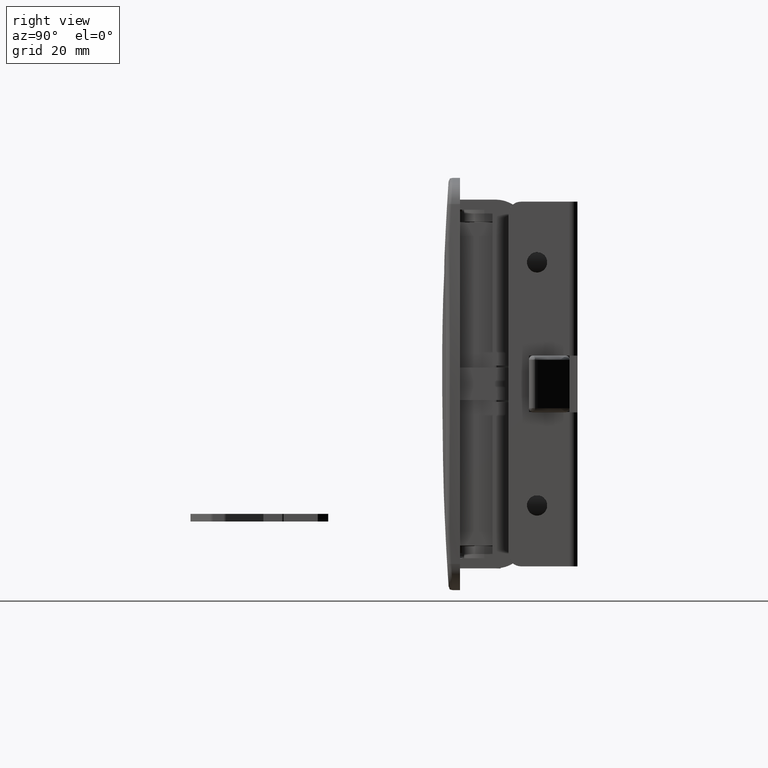
[diagram: clean part render]
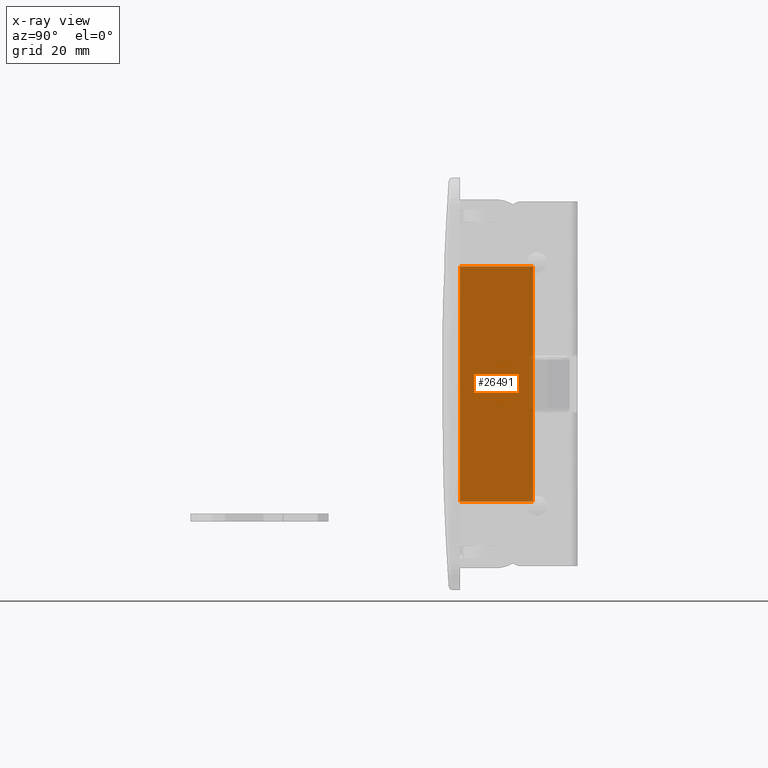
[diagram: x-ray — body ghosted, one internal face saturated and labeled with its STEP entity id]
A machine part, right view, then the same camera in x-ray: the body is ghosted and one INTERNAL B-rep face — a face not visible from any outside direction — is saturated and labeled: STEP entity #26491.
In plain terms, the highlighted face is a freeform B-spline surface patch.
Its self-contained STEP definition (entity closure, byte-faithful):
#24571=CARTESIAN_POINT('',(35.000999999999998,-11.0,-29.0));
#24572=VERTEX_POINT('',#24571);
#24627=CARTESIAN_POINT('',(35.000999999999998,-29.0,-29.0));
#24628=VERTEX_POINT('',#24627);
#24666=CARTESIAN_POINT('',(35.000999999999998,-29.0,-29.0));
#24667=CARTESIAN_POINT('',(35.000999999999998,-11.0,-29.0));
#24668=QUASI_UNIFORM_CURVE('',1,(#24666,#24667),.UNSPECIFIED.,.F.,.U.);
#24669=EDGE_CURVE('',#24628,#24572,#24668,.T.);
#24776=CARTESIAN_POINT('',(35.000999999999998,-11.0,29.0));
#24777=VERTEX_POINT('',#24776);
#24830=CARTESIAN_POINT('',(35.000999999999998,-29.0,29.0));
#24831=VERTEX_POINT('',#24830);
#24863=CARTESIAN_POINT('',(35.000999999999998,-11.0,29.0));
#24864=CARTESIAN_POINT('',(35.000999999999998,-29.0,29.0));
#24865=QUASI_UNIFORM_CURVE('',1,(#24863,#24864),.UNSPECIFIED.,.F.,.U.);
#24866=EDGE_CURVE('',#24777,#24831,#24865,.T.);
#26467=CARTESIAN_POINT('',(35.000999999999998,-11.0,-29.0));
#26468=CARTESIAN_POINT('',(35.000999999999998,-11.0,29.0));
#26469=QUASI_UNIFORM_CURVE('',1,(#26467,#26468),.UNSPECIFIED.,.F.,.U.);
#26470=EDGE_CURVE('',#24572,#24777,#26469,.T.);
#26476=CARTESIAN_POINT('',(35.000999999999998,-29.899099965112509,31.897099887584751));
#26477=CARTESIAN_POINT('',(35.000999999999998,-29.899099965112509,-31.897101443265981));
#26478=CARTESIAN_POINT('',(35.000999999999998,-10.100899552089871,31.897099887584751));
#26479=CARTESIAN_POINT('',(35.000999999999998,-10.100899552089871,-31.897101443265981));
#26480=B_SPLINE_SURFACE_WITH_KNOTS('',1,1,((#26476,#26478),(#26477,#26479)),.UNSPECIFIED.,.F.,.F.,.U.,(2,2),(2,2),(0.0,63.794201330850733),(0.0,19.798200413022641),.UNSPECIFIED.);
#26481=ORIENTED_EDGE('',*,*,#26470,.T.);
#26482=ORIENTED_EDGE('',*,*,#24866,.T.);
#26483=CARTESIAN_POINT('',(35.000999999999998,-29.0,-29.0));
#26484=CARTESIAN_POINT('',(35.000999999999998,-29.0,29.0));
#26485=QUASI_UNIFORM_CURVE('',1,(#26483,#26484),.UNSPECIFIED.,.F.,.U.);
#26486=EDGE_CURVE('',#24628,#24831,#26485,.T.);
#26487=ORIENTED_EDGE('',*,*,#26486,.F.);
#26488=ORIENTED_EDGE('',*,*,#24669,.T.);
#26489=EDGE_LOOP('',(#26481,#26482,#26487,#26488));
#26490=FACE_OUTER_BOUND('',#26489,.T.);
#26491=ADVANCED_FACE('',(#26490),#26480,.T.);